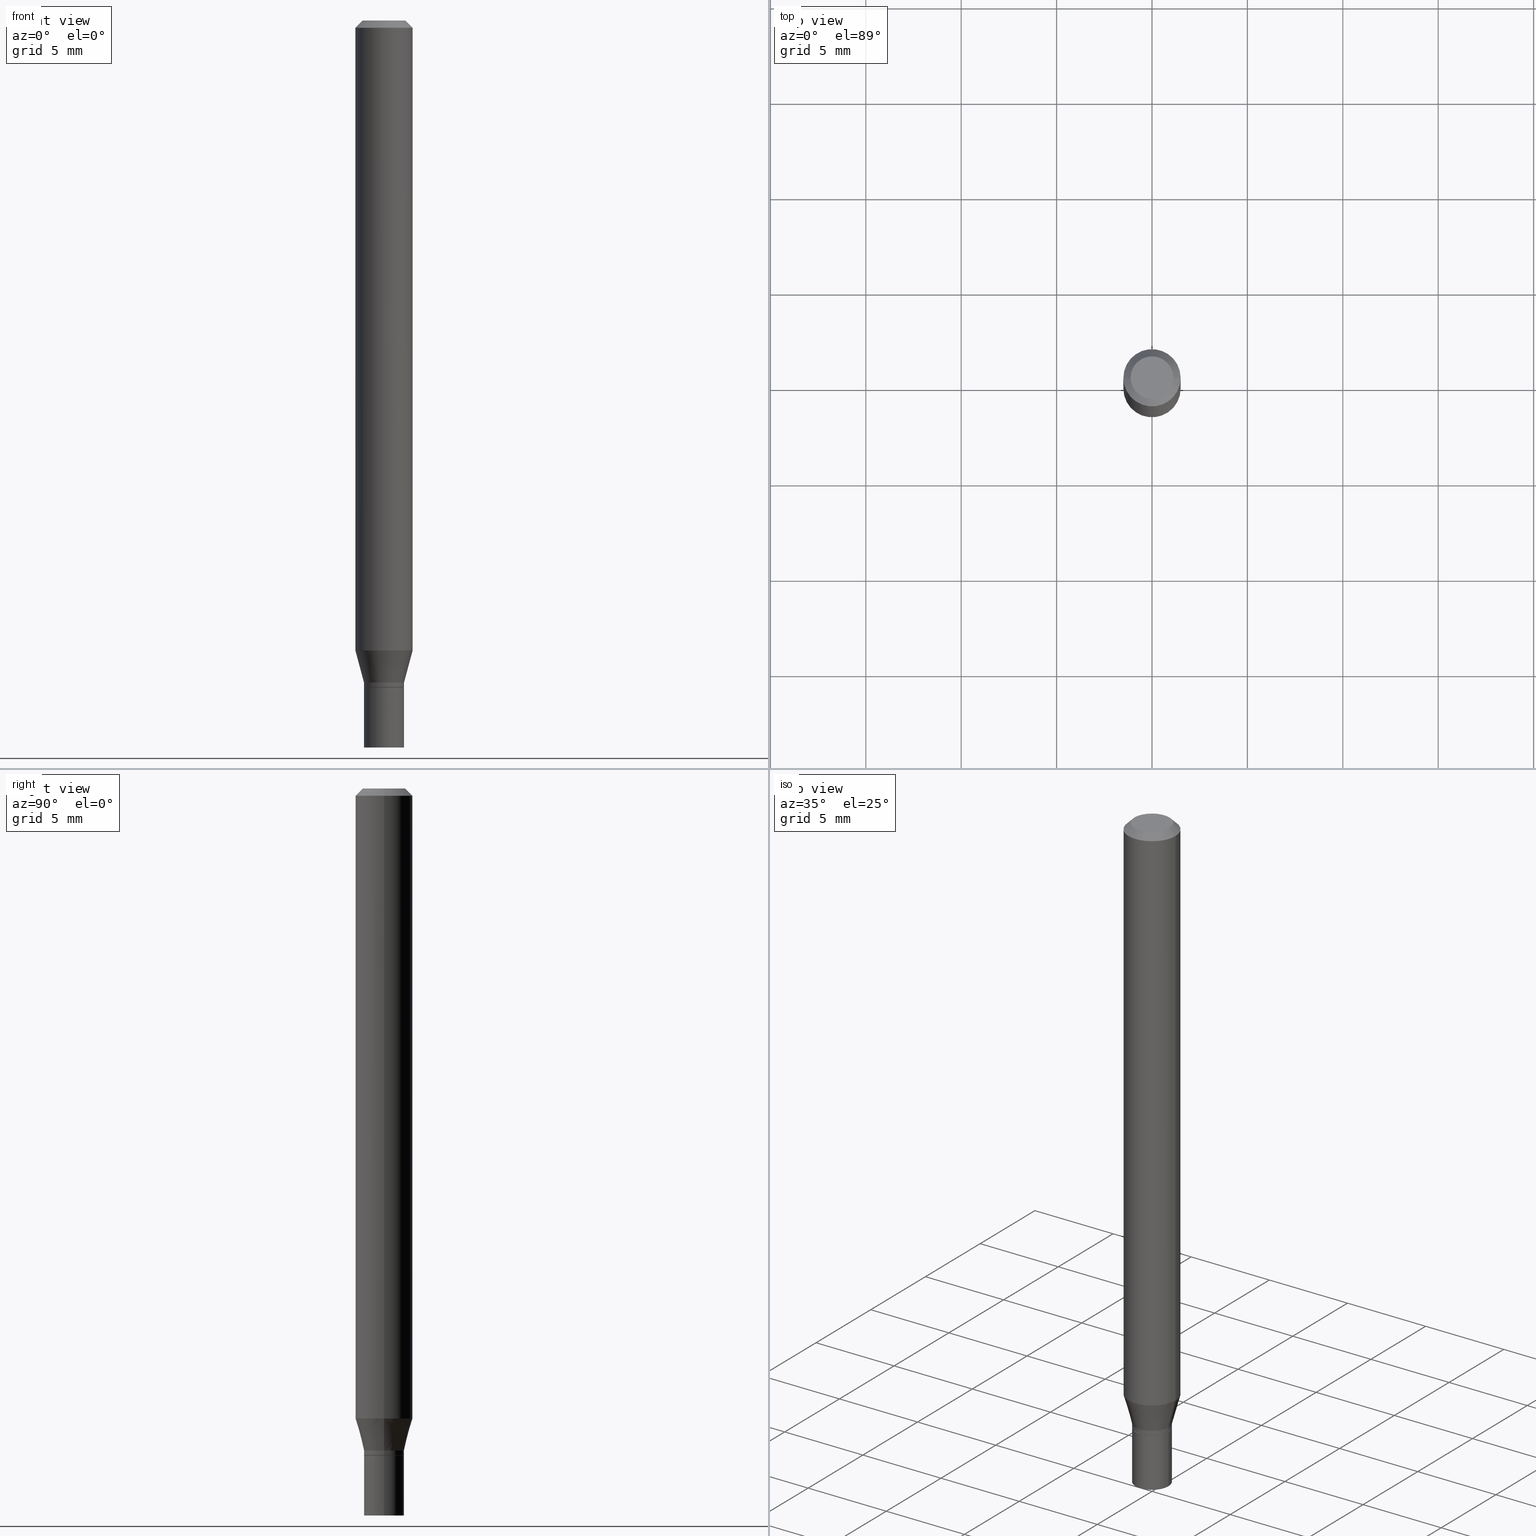
[diagram: canonical four-view strip — front | top / right | iso, engineering-drawing reading convention]
A machine part, canonical four-view strip (front | top / right | iso — engineering-drawing reading convention). The complete STEP part file that produces these views, byte-faithful:
ISO-10303-21;
HEADER;
FILE_DESCRIPTION (( 'STEP AP203' ),
    '1' );
FILE_NAME ('09278.STEP',
    '2024-03-14T18:17:02',
    ( '' ),
    ( '' ),
    'SwSTEP 2.0',
    'SolidWorks 2023',
    '' );
FILE_SCHEMA (( 'CONFIG_CONTROL_DESIGN' ));
ENDSEC;

DATA;
#1 = VERTEX_POINT ( 'NONE', #215 ) ;
#2 = APPROVAL_DATE_TIME ( #432, #296 ) ;
#3 = LINE ( 'NONE', #366, #442 ) ;
#4 = CIRCLE ( 'NONE', #409, 0.05904999999999999832 ) ;
#5 = CIRCLE ( 'NONE', #372, 0.04134999999999992154 ) ;
#6 = LINE ( 'NONE', #403, #150 ) ;
#7 =( NAMED_UNIT ( * ) SI_UNIT ( $, .STERADIAN. ) SOLID_ANGLE_UNIT ( ) );
#8 = ADVANCED_FACE ( 'NONE', ( #174 ), #356, .T. ) ;
#9 = CARTESIAN_POINT ( 'NONE',  ( -0.05904999999999999832, 4.195754854663391478E-16, -2.904631170795521892E-30 ) ) ;
#10 = DIRECTION ( 'NONE',  ( -2.445468806185136597E-29, 3.491481338843145583E-15, 1.000000000000000000 ) ) ;
#11 = CALENDAR_DATE ( 2024, 14, 3 ) ;
#12 = AXIS2_PLACEMENT_3D ( 'NONE', #128, #286, #248 ) ;
#13 = VECTOR ( 'NONE', #264, 39.37007874015748143 ) ;
#14 = VECTOR ( 'NONE', #383, 39.37007874015748854 ) ;
#15 = EDGE_CURVE ( 'NONE', #1, #287, #365, .T. ) ;
#16 = DIRECTION ( 'NONE',  ( -2.445468806185136877E-29, 3.491481338843145188E-15, 1.000000000000000000 ) ) ;
#17 =( LENGTH_UNIT ( ) NAMED_UNIT ( * ) SI_UNIT ( $, .METRE. ) );
#18 = CARTESIAN_POINT ( 'NONE',  ( 3.576687321579069994E-29, -5.368277968210015545E-15, -1.500000000000000222 ) ) ;
#19 = DIRECTION ( 'NONE',  ( -2.438088387897960049E-29, 3.491481338843145188E-15, 1.000000000000000000 ) ) ;
#20 = ADVANCED_FACE ( 'NONE', ( #294 ), #428, .T. ) ;
#21 = AXIS2_PLACEMENT_3D ( 'NONE', #437, #222, #181 ) ;
#22 = CARTESIAN_POINT ( 'NONE',  ( 0.05904999999999999832, -4.950720479063956605E-15, -1.299842700706030918 ) ) ;
#23 = ORIENTED_EDGE ( 'NONE', *, *, #460, .T. ) ;
#24 = EDGE_CURVE ( 'NONE', #250, #203, #225, .T. ) ;
#25 = DIRECTION ( 'NONE',  ( -1.000000000000000000, 6.982962677686265922E-15, -4.876176775795935793E-29 ) ) ;
#26 = ORIENTED_EDGE ( 'NONE', *, *, #15, .F. ) ;
#27 = FACE_OUTER_BOUND ( 'NONE', #318, .T. ) ;
#28 = ORIENTED_EDGE ( 'NONE', *, *, #172, .T. ) ;
#29 = CIRCLE ( 'NONE', #92, 0.04134999999999992154 ) ;
#30 = CIRCLE ( 'NONE', #12, 0.04084999999999999742 ) ;
#31 = DIRECTION ( 'NONE',  ( 1.000000000000000000, -6.982962677686266711E-15, 4.876176775795936353E-29 ) ) ;
#32 = EDGE_CURVE ( 'NONE', #282, #269, #29, .T. ) ;
#33 = CARTESIAN_POINT ( 'NONE',  ( -0.05904999999999999832, 3.599717260347268549E-16, -0.01499999999999999944 ) ) ;
#34 = VERTEX_POINT ( 'NONE', #152 ) ;
#35 = DIRECTION ( 'NONE',  ( -2.445468806185136597E-29, 3.491481338843145583E-15, 1.000000000000000000 ) ) ;
#36 = ORIENTED_EDGE ( 'NONE', *, *, #323, .F. ) ;
#37 = CARTESIAN_POINT ( 'NONE',  ( 0.000000000000000000, 0.000000000000000000, 0.000000000000000000 ) ) ;
#38 = CIRCLE ( 'NONE', #93, 0.05904999999999999832 ) ;
#39 = VERTEX_POINT ( 'NONE', #77 ) ;
#40 = CARTESIAN_POINT ( 'NONE',  ( 0.000000000000000000, 0.000000000000000000, 0.000000000000000000 ) ) ;
#41 = APPROVAL_ROLE ( '' ) ;
#42 = CARTESIAN_POINT ( 'NONE',  ( 3.364720530430130200E-29, -4.803929174114285214E-15, -1.375900000000000123 ) ) ;
#43 = SECURITY_CLASSIFICATION ( '', '', #369 ) ;
#44 = CALENDAR_DATE ( 2024, 14, 3 ) ;
#45 = CARTESIAN_POINT ( 'NONE',  ( 3.364720530430130200E-29, -4.803929174114285214E-15, -1.375900000000000123 ) ) ;
#46 = APPLICATION_PROTOCOL_DEFINITION ( 'international standard', 'config_control_design', 1994, #404 ) ;
#47 = CARTESIAN_POINT ( 'NONE',  ( 0.000000000000000000, 0.000000000000000000, 0.000000000000000000 ) ) ;
#48 = LENGTH_MEASURE_WITH_UNIT ( LENGTH_MEASURE( 0.02539999999999999897 ), #17 );
#49 = DIRECTION ( 'NONE',  ( -2.445468806185136877E-29, 3.491481338843145188E-15, 1.000000000000000000 ) ) ;
#50 = ORGANIZATION ( 'UNSPECIFIED', 'UNSPECIFIED', '' ) ;
#51 = CONICAL_SURFACE ( 'NONE', #290, 0.04084999999999999742, 0.7853981633974739252 ) ;
#52 = DIRECTION ( 'NONE',  ( -2.445468806185136597E-29, 3.491481338843145583E-15, 1.000000000000000000 ) ) ;
#53 = DIRECTION ( 'NONE',  ( -2.445468806185136597E-29, 3.491481338843145583E-15, 1.000000000000000000 ) ) ;
#54 = ADVANCED_FACE ( 'NONE', ( #295 ), #285, .T. ) ;
#55 = DIRECTION ( 'NONE',  ( -2.445468806185136597E-29, 3.491481338843145583E-15, 1.000000000000000000 ) ) ;
#56 = ADVANCED_FACE ( 'NONE', ( #258 ), #254, .T. ) ;
#57 = LINE ( 'NONE', #446, #142 ) ;
#58 = CARTESIAN_POINT ( 'NONE',  ( -0.04134999999999992154, -4.508374012208062298E-15, -1.375400000000000400 ) ) ;
#59 = ORIENTED_EDGE ( 'NONE', *, *, #359, .F. ) ;
#60 = MANIFOLD_SOLID_BREP ( 'Body-Move/Copy2[1]', #334 ) ;
#61 = CARTESIAN_POINT ( 'NONE',  ( -0.04134999999999992154, 2.938094212368008694E-16, -2.033979659820399598E-30 ) ) ;
#62 = VERTEX_POINT ( 'NONE', #261 ) ;
#63 = CARTESIAN_POINT ( 'NONE',  ( 3.668203209277705088E-31, -5.237222008264718399E-17, -0.01499999999999999944 ) ) ;
#64 = EDGE_LOOP ( 'NONE', ( #97, #106, #380, #358 ) ) ;
#65 = CARTESIAN_POINT ( 'NONE',  ( 3.364720530430130200E-29, -4.803929174114285214E-15, -1.375900000000000123 ) ) ;
#66 = ORIENTED_EDGE ( 'NONE', *, *, #280, .T. ) ;
#67 = EDGE_CURVE ( 'NONE', #282, #34, #6, .T. ) ;
#68 = ORIENTED_EDGE ( 'NONE', *, *, #341, .T. ) ;
#69 = ORIENTED_EDGE ( 'NONE', *, *, #109, .F. ) ;
#70 = AXIS2_PLACEMENT_3D ( 'NONE', #40, #141, #397 ) ;
#71 = AXIS2_PLACEMENT_3D ( 'NONE', #274, #313, #268 ) ;
#72 = APPROVAL ( #364, 'UNSPECIFIED' ) ;
#73 = DIRECTION ( 'NONE',  ( 2.445468806185136597E-29, -3.491481338843145583E-15, -1.000000000000000000 ) ) ;
#74 = APPROVAL_ROLE ( '' ) ;
#75 = ADVANCED_FACE ( 'NONE', ( #113 ), #185, .T. ) ;
#76 = ADVANCED_FACE ( 'NONE', ( #178 ), #435, .T. ) ;
#77 = CARTESIAN_POINT ( 'NONE',  ( -0.05904999999999999832, -4.118801047480243769E-15, -1.299842700706030918 ) ) ;
#78 = CALENDAR_DATE ( 2024, 14, 3 ) ;
#79 = DIRECTION ( 'NONE',  ( -1.000000000000000000, 6.982962677686266711E-15, 0.000000000000000000 ) ) ;
#80 = DATE_AND_TIME ( #11, #125 ) ;
#81 = DIRECTION ( 'NONE',  ( 1.000000000000000000, -6.982962677686273021E-15, 0.000000000000000000 ) ) ;
#82 = PERSON_AND_ORGANIZATION ( #406, #50 ) ;
#83 = CC_DESIGN_PERSON_AND_ORGANIZATION_ASSIGNMENT ( #260, #257, ( #127 ) ) ;
#84 = FACE_OUTER_BOUND ( 'NONE', #464, .T. ) ;
#85 = DATE_AND_TIME ( #444, #457 ) ;
#86 = DIRECTION ( 'NONE',  ( -2.438088387897960049E-29, 3.491481338843145188E-15, 1.000000000000000000 ) ) ;
#87 = VECTOR ( 'NONE', #169, 39.37007874015748854 ) ;
#88 = CARTESIAN_POINT ( 'NONE',  ( -0.04134999999999999787, -4.726766169952701467E-15, -1.375900000000000123 ) ) ;
#89 = EDGE_CURVE ( 'NONE', #34, #309, #3, .T. ) ;
#90 = CARTESIAN_POINT ( 'NONE',  ( 3.340265842368278094E-29, -4.769014360725852776E-15, -1.365900000000000114 ) ) ;
#91 = DIRECTION ( 'NONE',  ( -2.445468806185136597E-29, 3.491481338843145583E-15, 1.000000000000000000 ) ) ;
#92 = AXIS2_PLACEMENT_3D ( 'NONE', #144, #292, #300 ) ;
#93 = AXIS2_PLACEMENT_3D ( 'NONE', #330, #361, #81 ) ;
#94 = DIRECTION ( 'NONE',  ( 1.000000000000000000, -6.982962677686262766E-15, 0.000000000000000000 ) ) ;
#95 = ADVANCED_BREP_SHAPE_REPRESENTATION ( '09278', ( #60, #205, #291 ), #415 ) ;
#96 = CARTESIAN_POINT ( 'NONE',  ( 0.05904999999999999832, -4.574846268510561447E-16, -0.01499999999999999944 ) ) ;
#97 = ORIENTED_EDGE ( 'NONE', *, *, #460, .F. ) ;
#98 = DIRECTION ( 'NONE',  ( -2.445468806185136597E-29, 3.491481338843145583E-15, 1.000000000000000000 ) ) ;
#99 = VERTEX_POINT ( 'NONE', #325 ) ;
#100 = AXIS2_PLACEMENT_3D ( 'NONE', #378, #52, #377 ) ;
#101 = CARTESIAN_POINT ( 'NONE',  ( -0.04134999999999992154, -4.475204939489051364E-15, -1.365900000000000114 ) ) ;
#102 = EDGE_LOOP ( 'NONE', ( #256, #272, #177, #450 ) ) ;
#103 = EDGE_LOOP ( 'NONE', ( #322, #219, #316, #197 ) ) ;
#104 = ORIENTED_EDGE ( 'NONE', *, *, #194, .T. ) ;
#105 = LOCAL_TIME ( 14, 17, 2.000000000000000000, #108 ) ;
#106 = ORIENTED_EDGE ( 'NONE', *, *, #340, .T. ) ;
#107 = CIRCLE ( 'NONE', #100, 0.05904999999999999832 ) ;
#108 = COORDINATED_UNIVERSAL_TIME_OFFSET ( 5, 0, .BEHIND. ) ;
#109 = EDGE_CURVE ( 'NONE', #287, #1, #328, .T. ) ;
#110 = EDGE_CURVE ( 'NONE', #309, #39, #38, .T. ) ;
#111 = DIRECTION ( 'NONE',  ( -2.445468806185136597E-29, 3.491481338843145583E-15, 1.000000000000000000 ) ) ;
#112 = DIRECTION ( 'NONE',  ( 1.000000000000000000, -6.982962677686267499E-15, 4.876176775795936353E-29 ) ) ;
#113 = FACE_OUTER_BOUND ( 'NONE', #137, .T. ) ;
#114 = LINE ( 'NONE', #228, #217 ) ;
#115 = LINE ( 'NONE', #9, #298 ) ;
#116 = CARTESIAN_POINT ( 'NONE',  ( 0.04404999999999999888, -3.798447818264464023E-16, -2.090942999999162343E-16 ) ) ;
#117 = EDGE_LOOP ( 'NONE', ( #433, #312, #104, #321 ) ) ;
#118 = AXIS2_PLACEMENT_3D ( 'NONE', #158, #449, #414 ) ;
#119 = EDGE_CURVE ( 'NONE', #39, #279, #115, .T. ) ;
#120 = CARTESIAN_POINT ( 'NONE',  ( 0.04134999999999999787, -2.887455067223271427E-16, 2.016299096791619635E-30 ) ) ;
#121 = DESIGN_CONTEXT ( 'detailed design', #404, 'design' ) ;
#122 = DIRECTION ( 'NONE',  ( -2.445468806185136597E-29, 3.491481338843145583E-15, 1.000000000000000000 ) ) ;
#123 = CARTESIAN_POINT ( 'NONE',  ( 0.04134999999999999787, -5.092674680836612159E-15, -1.375900000000000123 ) ) ;
#124 = CC_DESIGN_PERSON_AND_ORGANIZATION_ASSIGNMENT ( #438, #229, ( #127 ) ) ;
#125 = LOCAL_TIME ( 14, 17, 2.000000000000000000, #265 ) ;
#126 = AXIS2_PLACEMENT_3D ( 'NONE', #45, #443, #329 ) ;
#127 = PRODUCT_DEFINITION_FORMATION_WITH_SPECIFIED_SOURCE ( 'ANY', '', #251, .NOT_KNOWN. ) ;
#128 = CARTESIAN_POINT ( 'NONE',  ( 3.364720530430130200E-29, -4.803929174114285214E-15, -1.375900000000000123 ) ) ;
#129 = SHAPE_DEFINITION_REPRESENTATION ( #390, #95 ) ;
#130 = DIRECTION ( 'NONE',  ( 1.000000000000000000, -6.982962677686262766E-15, 0.000000000000000000 ) ) ;
#131 = ORIENTED_EDGE ( 'NONE', *, *, #375, .T. ) ;
#132 = DIRECTION ( 'NONE',  ( -2.445468806185136597E-29, 3.491481338843145583E-15, 1.000000000000000000 ) ) ;
#133 = ORIENTED_EDGE ( 'NONE', *, *, #155, .T. ) ;
#134 = CARTESIAN_POINT ( 'NONE',  ( 0.04134999999999999787, -5.525967514987045911E-15, -1.500000000000000222 ) ) ;
#135 = AXIS2_PLACEMENT_3D ( 'NONE', #407, #111, #363 ) ;
#136 = EDGE_LOOP ( 'NONE', ( #427, #199 ) ) ;
#137 = EDGE_LOOP ( 'NONE', ( #252, #345, #385, #303 ) ) ;
#138 = ORIENTED_EDGE ( 'NONE', *, *, #375, .F. ) ;
#139 = EDGE_CURVE ( 'NONE', #349, #389, #357, .T. ) ;
#140 = VECTOR ( 'NONE', #386, 39.37007874015748143 ) ;
#141 = DIRECTION ( 'NONE',  ( -2.445468806185136597E-29, 3.491481338843145583E-15, 1.000000000000000000 ) ) ;
#142 = VECTOR ( 'NONE', #410, 39.37007874015748143 ) ;
#143 =( NAMED_UNIT ( * ) PLANE_ANGLE_UNIT ( ) SI_UNIT ( $, .RADIAN. ) );
#144 = CARTESIAN_POINT ( 'NONE',  ( 3.363497796027037398E-29, -4.802183433444863710E-15, -1.375400000000000400 ) ) ;
#145 = CARTESIAN_POINT ( 'NONE',  ( 3.668203209277704895E-29, -5.237222008264718177E-15, -1.500000000000000222 ) ) ;
#146 = PERSON_AND_ORGANIZATION_ROLE ( 'creator' ) ;
#147 = CC_DESIGN_SECURITY_CLASSIFICATION ( #43, ( #127 ) ) ;
#148 = CARTESIAN_POINT ( 'NONE',  ( 5.113335882009178277E-45, -7.300488465081862281E-31, -2.090942999999186255E-16 ) ) ;
#149 = COORDINATED_UNIVERSAL_TIME_OFFSET ( 5, 0, .BEHIND. ) ;
#150 = VECTOR ( 'NONE', #220, 39.37007874015748143 ) ;
#151 = CIRCLE ( 'NONE', #455, 0.04134999999999999787 ) ;
#152 = CARTESIAN_POINT ( 'NONE',  ( 0.04134999999999992154, -5.057759867448178932E-15, -1.365900000000000114 ) ) ;
#153 = DIRECTION ( 'NONE',  ( -2.445468806185136877E-29, 3.491481338843145188E-15, 1.000000000000000000 ) ) ;
#154 = ORIENTED_EDGE ( 'NONE', *, *, #139, .F. ) ;
#155 = EDGE_CURVE ( 'NONE', #309, #211, #114, .T. ) ;
#156 = CARTESIAN_POINT ( 'NONE',  ( 0.05904999999999999832, -4.647161662000212105E-16, -0.01499999999999999944 ) ) ;
#157 = CLOSED_SHELL ( 'NONE', ( #171, #393, #266, #8, #212, #54, #338, #20, #184, #196, #56, #465 ) ) ;
#158 = CARTESIAN_POINT ( 'NONE',  ( 3.668203209277705088E-31, -5.237222008264718399E-17, -0.01499999999999999944 ) ) ;
#159 = UNCERTAINTY_MEASURE_WITH_UNIT (LENGTH_MEASURE( 1.000000000000000082E-05 ), #367, 'distance_accuracy_value', 'NONE');
#160 = EDGE_CURVE ( 'NONE', #99, #269, #440, .T. ) ;
#161 = CARTESIAN_POINT ( 'NONE',  ( 3.075995059520799729E-16, 0.04404999999999999888, -2.583469029759998662E-16 ) ) ;
#162 = ORIENTED_EDGE ( 'NONE', *, *, #32, .T. ) ;
#163 = DIRECTION ( 'NONE',  ( 1.000000000000000000, -6.982962677686265922E-15, 4.876176775795935793E-29 ) ) ;
#164 = LOCAL_TIME ( 14, 17, 2.000000000000000000, #179 ) ;
#165 = CIRCLE ( 'NONE', #447, 0.04134999999999992154 ) ;
#166 = CARTESIAN_POINT ( 'NONE',  ( -0.04134999999999999787, 2.938094212368014117E-16, -2.033979659820403452E-30 ) ) ;
#167 = ORIENTED_EDGE ( 'NONE', *, *, #307, .F. ) ;
#168 = CC_DESIGN_PERSON_AND_ORGANIZATION_ASSIGNMENT ( #336, #146, ( #319 ) ) ;
#169 = DIRECTION ( 'NONE',  ( -0.2588190451025217387, 5.211531920934551042E-15, 0.9659258262890679791 ) ) ;
#170 = ORIENTED_EDGE ( 'NONE', *, *, #67, .F. ) ;
#171 = ADVANCED_FACE ( 'NONE', ( #84 ), #395, .T. ) ;
#172 = EDGE_CURVE ( 'NONE', #62, #34, #350, .T. ) ;
#173 = DIRECTION ( 'NONE',  ( -2.445468806185136597E-29, 3.491481338843145583E-15, 1.000000000000000000 ) ) ;
#174 = FACE_OUTER_BOUND ( 'NONE', #103, .T. ) ;
#175 = AXIS2_PLACEMENT_3D ( 'NONE', #47, #224, #112 ) ;
#176 = ORIENTED_EDGE ( 'NONE', *, *, #436, .F. ) ;
#177 = ORIENTED_EDGE ( 'NONE', *, *, #24, .F. ) ;
#178 = FACE_OUTER_BOUND ( 'NONE', #102, .T. ) ;
#179 = COORDINATED_UNIVERSAL_TIME_OFFSET ( 5, 0, .BEHIND. ) ;
#180 = VECTOR ( 'NONE', #352, 39.37007874015748854 ) ;
#181 = DIRECTION ( 'NONE',  ( 1.000000000000000000, -6.982962677686262766E-15, 0.000000000000000000 ) ) ;
#182 = AXIS2_PLACEMENT_3D ( 'NONE', #37, #289, #31 ) ;
#183 = APPROVAL_DATE_TIME ( #263, #72 ) ;
#184 = ADVANCED_FACE ( 'NONE', ( #452 ), #416, .F. ) ;
#185 = CYLINDRICAL_SURFACE ( 'NONE', #175, 0.04134999999999999787 ) ;
#186 = APPROVAL_ROLE ( '' ) ;
#187 = DIRECTION ( 'NONE',  ( 1.000000000000000000, -6.982962677686273021E-15, 0.000000000000000000 ) ) ;
#188 = DIRECTION ( 'NONE',  ( 0.000000000000000000, 0.000000000000000000, 1.000000000000000000 ) ) ;
#189 = CC_DESIGN_DATE_AND_TIME_ASSIGNMENT ( #326, #405, ( #319 ) ) ;
#190 = CC_DESIGN_APPROVAL ( #451, ( #319 ) ) ;
#191 = CARTESIAN_POINT ( 'NONE',  ( 3.668203209277705088E-31, -5.237222008264718399E-17, -0.01499999999999999944 ) ) ;
#192 = APPROVAL_DATE_TIME ( #80, #451 ) ;
#193 = CC_DESIGN_APPROVAL ( #72, ( #127 ) ) ;
#194 = EDGE_CURVE ( 'NONE', #388, #282, #57, .T. ) ;
#195 = CARTESIAN_POINT ( 'NONE',  ( 0.04134999999999992154, -5.090928940167189867E-15, -1.375400000000000400 ) ) ;
#196 = ADVANCED_FACE ( 'NONE', ( #376 ), #236, .F. ) ;
#197 = ORIENTED_EDGE ( 'NONE', *, *, #155, .F. ) ;
#198 = CARTESIAN_POINT ( 'NONE',  ( 3.178724777524041310E-29, -4.538376532946583262E-15, -1.299842700706030918 ) ) ;
#199 = ORIENTED_EDGE ( 'NONE', *, *, #109, .T. ) ;
#200 = DIRECTION ( 'NONE',  ( -2.445468806185136597E-29, 3.491481338843145583E-15, 1.000000000000000000 ) ) ;
#201 = ORIENTED_EDGE ( 'NONE', *, *, #439, .F. ) ;
#202 = DIRECTION ( 'NONE',  ( -1.000000000000000000, 6.982962677686265922E-15, -4.876176775795935793E-29 ) ) ;
#203 = VERTEX_POINT ( 'NONE', #88 ) ;
#204 = CARTESIAN_POINT ( 'NONE',  ( 3.668203209277704895E-29, -5.237222008264718177E-15, -1.500000000000000222 ) ) ;
#205 = MANIFOLD_SOLID_BREP ( 'Body-Move/Copy2[2]', #157 ) ;
#206 = CYLINDRICAL_SURFACE ( 'NONE', #418, 0.04134999999999992154 ) ;
#207 = ORIENTED_EDGE ( 'NONE', *, *, #160, .T. ) ;
#208 = VECTOR ( 'NONE', #354, 39.37007874015748143 ) ;
#209 = AXIS2_PLACEMENT_3D ( 'NONE', #456, #19, #240 ) ;
#210 = CARTESIAN_POINT ( 'NONE',  ( -0.04134999999999999787, -4.726766169952701467E-15, -1.500000000000000222 ) ) ;
#211 = VERTEX_POINT ( 'NONE', #156 ) ;
#212 = ADVANCED_FACE ( 'NONE', ( #235 ), #374, .T. ) ;
#213 = FACE_OUTER_BOUND ( 'NONE', #324, .T. ) ;
#214 = ORIENTED_EDGE ( 'NONE', *, *, #110, .F. ) ;
#215 = CARTESIAN_POINT ( 'NONE',  ( -0.04404999999999999888, 3.337856159934030687E-16, -2.090942999999208688E-16 ) ) ;
#216 = CONICAL_SURFACE ( 'NONE', #118, 0.05904999999999999832, 0.7853981633974553844 ) ;
#217 = VECTOR ( 'NONE', #16, 39.37007874015748143 ) ;
#218 = CIRCLE ( 'NONE', #232, 0.05904999999999999832 ) ;
#219 = ORIENTED_EDGE ( 'NONE', *, *, #119, .T. ) ;
#220 = DIRECTION ( 'NONE',  ( -2.445468806185136877E-29, 3.491481338843145188E-15, 1.000000000000000000 ) ) ;
#221 = COORDINATED_UNIVERSAL_TIME_OFFSET ( 5, 0, .BEHIND. ) ;
#222 = DIRECTION ( 'NONE',  ( -2.445468806185136597E-29, 3.491481338843145583E-15, 1.000000000000000000 ) ) ;
#223 = APPLICATION_PROTOCOL_DEFINITION ( 'international standard', 'config_control_design', 1994, #382 ) ;
#224 = DIRECTION ( 'NONE',  ( -2.445468806185136597E-29, 3.491481338843145583E-15, 1.000000000000000000 ) ) ;
#225 = CIRCLE ( 'NONE', #402, 0.04134999999999999787 ) ;
#226 = PERSON_AND_ORGANIZATION_ROLE ( 'design_owner' ) ;
#227 = EDGE_CURVE ( 'NONE', #34, #62, #5, .T. ) ;
#228 = CARTESIAN_POINT ( 'NONE',  ( 0.05904999999999999832, -4.123439461173740327E-16, 2.879382386107500220E-30 ) ) ;
#229 = PERSON_AND_ORGANIZATION_ROLE ( 'creator' ) ;
#230 = DIRECTION ( 'NONE',  ( 1.000000000000000000, -6.982962677686267499E-15, 4.876176775795936353E-29 ) ) ;
#231 = DATE_TIME_ROLE ( 'classification_date' ) ;
#232 = AXIS2_PLACEMENT_3D ( 'NONE', #198, #55, #453 ) ;
#233 = LINE ( 'NONE', #120, #304 ) ;
#234 = AXIS2_PLACEMENT_3D ( 'NONE', #65, #173, #320 ) ;
#235 = FACE_OUTER_BOUND ( 'NONE', #422, .T. ) ;
#236 = PLANE ( 'NONE',  #209 ) ;
#237 = CC_DESIGN_PERSON_AND_ORGANIZATION_ASSIGNMENT ( #299, #401, ( #43 ) ) ;
#238 = PLANE ( 'NONE',  #314 ) ;
#239 = AXIS2_PLACEMENT_3D ( 'NONE', #148, #370, #400 ) ;
#240 = DIRECTION ( 'NONE',  ( 1.000000000000000000, -6.982962677686265922E-15, 4.876176775795935793E-29 ) ) ;
#241 = EDGE_LOOP ( 'NONE', ( #59, #28, #249, #167 ) ) ;
#242 = CARTESIAN_POINT ( 'NONE',  ( 0.04084999999999999742, -5.089183199497769152E-15, -1.375900000000000123 ) ) ;
#243 = ORIENTED_EDGE ( 'NONE', *, *, #227, .F. ) ;
#244 = ADVANCED_FACE ( 'NONE', ( #342 ), #308, .F. ) ;
#245 = LINE ( 'NONE', #33, #14 ) ;
#246 = ORIENTED_EDGE ( 'NONE', *, *, #307, .T. ) ;
#247 = LOCAL_TIME ( 14, 17, 2.000000000000000000, #149 ) ;
#248 = DIRECTION ( 'NONE',  ( 1.000000000000000000, -6.982962677686261189E-15, 0.000000000000000000 ) ) ;
#249 = ORIENTED_EDGE ( 'NONE', *, *, #89, .T. ) ;
#250 = VERTEX_POINT ( 'NONE', #123 ) ;
#251 = PRODUCT ( '09278', '09278', '', ( #301 ) ) ;
#252 = ORIENTED_EDGE ( 'NONE', *, *, #387, .F. ) ;
#253 = APPROVAL_PERSON_ORGANIZATION ( #371, #296, #41 ) ;
#254 = CONICAL_SURFACE ( 'NONE', #126, 0.04084999999999999742, 0.7853981633974739252 ) ;
#255 = AXIS2_PLACEMENT_3D ( 'NONE', #379, #273, #25 ) ;
#256 = ORIENTED_EDGE ( 'NONE', *, *, #323, .T. ) ;
#257 = PERSON_AND_ORGANIZATION_ROLE ( 'design_supplier' ) ;
#258 = FACE_OUTER_BOUND ( 'NONE', #117, .T. ) ;
#259 = DIRECTION ( 'NONE',  ( 0.2588190451025217387, 1.565188264969619207E-15, 0.9659258262890679791 ) ) ;
#260 = PERSON_AND_ORGANIZATION ( #406, #50 ) ;
#261 = CARTESIAN_POINT ( 'NONE',  ( -0.04134999999999992154, -4.297002993484647567E-15, -1.365900000000000114 ) ) ;
#262 = AXIS2_PLACEMENT_3D ( 'NONE', #445, #332, #230 ) ;
#263 = DATE_AND_TIME ( #44, #247 ) ;
#264 = DIRECTION ( 'NONE',  ( -0.7071067811865656694, 7.493145998870420424E-15, 0.7071067811865294761 ) ) ;
#265 = COORDINATED_UNIVERSAL_TIME_OFFSET ( 5, 0, .BEHIND. ) ;
#266 = ADVANCED_FACE ( 'NONE', ( #412 ), #216, .T. ) ;
#267 = CARTESIAN_POINT ( 'NONE',  ( 0.000000000000000000, 0.000000000000000000, 0.000000000000000000 ) ) ;
#268 = DIRECTION ( 'NONE',  ( 1.000000000000000000, -6.982962677686262766E-15, 0.000000000000000000 ) ) ;
#269 = VERTEX_POINT ( 'NONE', #58 ) ;
#270 = EDGE_CURVE ( 'NONE', #389, #250, #233, .T. ) ;
#271 = DIRECTION ( 'NONE',  ( 1.000000000000000000, -6.982962677686266711E-15, 4.876176775795936353E-29 ) ) ;
#272 = ORIENTED_EDGE ( 'NONE', *, *, #387, .T. ) ;
#273 = DIRECTION ( 'NONE',  ( 2.438088387897960049E-29, -3.491481338843145188E-15, -1.000000000000000000 ) ) ;
#274 = CARTESIAN_POINT ( 'NONE',  ( 3.340265842368278094E-29, -4.769014360725852776E-15, -1.365900000000000114 ) ) ;
#275 = ORIENTED_EDGE ( 'NONE', *, *, #360, .F. ) ;
#276 = CC_DESIGN_DATE_AND_TIME_ASSIGNMENT ( #85, #231, ( #43 ) ) ;
#277 = AXIS2_PLACEMENT_3D ( 'NONE', #161, #302, #202 ) ;
#278 = DIRECTION ( 'NONE',  ( 1.000000000000000000, -6.982962677686261189E-15, 0.000000000000000000 ) ) ;
#279 = VERTEX_POINT ( 'NONE', #311 ) ;
#280 = EDGE_CURVE ( 'NONE', #211, #279, #107, .T. ) ;
#281 = DIRECTION ( 'NONE',  ( -2.445468806185136597E-29, 3.491481338843145583E-15, 1.000000000000000000 ) ) ;
#282 = VERTEX_POINT ( 'NONE', #195 ) ;
#283 = DIRECTION ( 'NONE',  ( 1.000000000000000000, -6.982962677686266711E-15, 0.000000000000000000 ) ) ;
#284 = EDGE_LOOP ( 'NONE', ( #306, #68 ) ) ;
#285 = CONICAL_SURFACE ( 'NONE', #21, 0.04134999999999992154, 0.2617993877991504625 ) ;
#286 = DIRECTION ( 'NONE',  ( -2.445468806185136597E-29, 3.491481338843145583E-15, 1.000000000000000000 ) ) ;
#287 = VERTEX_POINT ( 'NONE', #116 ) ;
#288 = EDGE_LOOP ( 'NONE', ( #391, #246, #133, #201 ) ) ;
#289 = DIRECTION ( 'NONE',  ( -2.445468806185136597E-29, 3.491481338843145583E-15, 1.000000000000000000 ) ) ;
#290 = AXIS2_PLACEMENT_3D ( 'NONE', #381, #98, #278 ) ;
#291 = AXIS2_PLACEMENT_3D ( 'NONE', #293, #188, #333 ) ;
#292 = DIRECTION ( 'NONE',  ( -2.445468806185136597E-29, 3.491481338843145583E-15, 1.000000000000000000 ) ) ;
#293 = CARTESIAN_POINT ( 'NONE',  ( 0.000000000000000000, 0.000000000000000000, 0.000000000000000000 ) ) ;
#294 = FACE_OUTER_BOUND ( 'NONE', #459, .T. ) ;
#295 = FACE_OUTER_BOUND ( 'NONE', #241, .T. ) ;
#296 = APPROVAL ( #362, 'UNSPECIFIED' ) ;
#297 = DIRECTION ( 'NONE',  ( -2.445468806185136597E-29, 3.491481338843145583E-15, 1.000000000000000000 ) ) ;
#298 = VECTOR ( 'NONE', #49, 39.37007874015748143 ) ;
#299 = PERSON_AND_ORGANIZATION ( #406, #50 ) ;
#300 = DIRECTION ( 'NONE',  ( 1.000000000000000000, -6.982962677686262766E-15, 0.000000000000000000 ) ) ;
#301 = MECHANICAL_CONTEXT ( 'NONE', #382, 'mechanical' ) ;
#302 = DIRECTION ( 'NONE',  ( 2.438088387897960049E-29, -3.491481338843145188E-15, -1.000000000000000000 ) ) ;
#303 = ORIENTED_EDGE ( 'NONE', *, *, #341, .F. ) ;
#304 = VECTOR ( 'NONE', #153, 39.37007874015748143 ) ;
#305 = CYLINDRICAL_SURFACE ( 'NONE', #384, 0.05904999999999999832 ) ;
#306 = ORIENTED_EDGE ( 'NONE', *, *, #24, .T. ) ;
#307 = EDGE_CURVE ( 'NONE', #39, #309, #218, .T. ) ;
#308 = PLANE ( 'NONE',  #255 ) ;
#309 = VERTEX_POINT ( 'NONE', #22 ) ;
#310 = DIMENSIONAL_EXPONENTS ( 1.000000000000000000, 0.000000000000000000, 0.000000000000000000, 0.000000000000000000, 0.000000000000000000, 0.000000000000000000, 0.000000000000000000 ) ;
#311 = CARTESIAN_POINT ( 'NONE',  ( -0.05904999999999999832, -1.875798891048276269E-15, -0.01499999999999999944 ) ) ;
#312 = ORIENTED_EDGE ( 'NONE', *, *, #360, .T. ) ;
#313 = DIRECTION ( 'NONE',  ( -2.445468806185136597E-29, 3.491481338843145583E-15, 1.000000000000000000 ) ) ;
#314 = AXIS2_PLACEMENT_3D ( 'NONE', #18, #86, #163 ) ;
#315 = CARTESIAN_POINT ( 'NONE',  ( 0.000000000000000000, 0.000000000000000000, 0.000000000000000000 ) ) ;
#316 = ORIENTED_EDGE ( 'NONE', *, *, #280, .F. ) ;
#317 = LINE ( 'NONE', #101, #87 ) ;
#318 = EDGE_LOOP ( 'NONE', ( #36, #154 ) ) ;
#319 = PRODUCT_DEFINITION ( 'UNKNOWN', '', #127, #121 ) ;
#320 = DIRECTION ( 'NONE',  ( 1.000000000000000000, -6.982962677686261189E-15, 0.000000000000000000 ) ) ;
#321 = ORIENTED_EDGE ( 'NONE', *, *, #340, .F. ) ;
#322 = ORIENTED_EDGE ( 'NONE', *, *, #110, .T. ) ;
#323 = EDGE_CURVE ( 'NONE', #389, #349, #151, .T. ) ;
#324 = EDGE_LOOP ( 'NONE', ( #353, #207, #343, #466 ) ) ;
#325 = CARTESIAN_POINT ( 'NONE',  ( -0.04084999999999999742, -4.511023239382173499E-15, -1.375900000000000123 ) ) ;
#326 = DATE_AND_TIME ( #78, #105 ) ;
#327 = APPROVAL_PERSON_ORGANIZATION ( #82, #72, #186 ) ;
#328 = CIRCLE ( 'NONE', #239, 0.04404999999999999888 ) ;
#329 = DIRECTION ( 'NONE',  ( 1.000000000000000000, -6.982962677686261189E-15, 0.000000000000000000 ) ) ;
#330 = CARTESIAN_POINT ( 'NONE',  ( 3.178724777524041310E-29, -4.538376532946583262E-15, -1.299842700706030918 ) ) ;
#331 = ADVANCED_FACE ( 'NONE', ( #27 ), #238, .F. ) ;
#332 = DIRECTION ( 'NONE',  ( -2.445468806185136597E-29, 3.491481338843145583E-15, 1.000000000000000000 ) ) ;
#333 = DIRECTION ( 'NONE',  ( 1.000000000000000000, 0.000000000000000000, 0.000000000000000000 ) ) ;
#334 = CLOSED_SHELL ( 'NONE', ( #76, #331, #75, #244 ) ) ;
#335 = DIRECTION ( 'NONE',  ( 1.000000000000000000, -6.982962677686273021E-15, 0.000000000000000000 ) ) ;
#336 = PERSON_AND_ORGANIZATION ( #406, #50 ) ;
#337 = DIRECTION ( 'NONE',  ( -2.445468806185136597E-29, 3.491481338843145583E-15, 1.000000000000000000 ) ) ;
#338 = ADVANCED_FACE ( 'NONE', ( #373 ), #305, .T. ) ;
#339 = DIRECTION ( 'NONE',  ( 1.000000000000000000, -6.982962677686262766E-15, 0.000000000000000000 ) ) ;
#340 = EDGE_CURVE ( 'NONE', #269, #282, #165, .T. ) ;
#341 = EDGE_CURVE ( 'NONE', #203, #250, #434, .T. ) ;
#342 = FACE_OUTER_BOUND ( 'NONE', #284, .T. ) ;
#343 = ORIENTED_EDGE ( 'NONE', *, *, #32, .F. ) ;
#344 = CARTESIAN_POINT ( 'NONE',  ( 3.340265842368278094E-29, -4.769014360725852776E-15, -1.365900000000000114 ) ) ;
#345 = ORIENTED_EDGE ( 'NONE', *, *, #139, .T. ) ;
#346 = DIRECTION ( 'NONE',  ( 1.000000000000000000, -6.982962677686273021E-15, 0.000000000000000000 ) ) ;
#347 = FACE_OUTER_BOUND ( 'NONE', #64, .T. ) ;
#348 = AXIS2_PLACEMENT_3D ( 'NONE', #458, #281, #421 ) ;
#349 = VERTEX_POINT ( 'NONE', #210 ) ;
#350 = CIRCLE ( 'NONE', #392, 0.04134999999999992154 ) ;
#351 = CC_DESIGN_APPROVAL ( #296, ( #43 ) ) ;
#352 = DIRECTION ( 'NONE',  ( 0.7071067811865524577, -7.319954787623271823E-15, -0.7071067811865424657 ) ) ;
#353 = ORIENTED_EDGE ( 'NONE', *, *, #436, .T. ) ;
#354 = DIRECTION ( 'NONE',  ( -2.445468806185136877E-29, 3.491481338843145188E-15, 1.000000000000000000 ) ) ;
#355 = ORIENTED_EDGE ( 'NONE', *, *, #423, .F. ) ;
#356 = CYLINDRICAL_SURFACE ( 'NONE', #182, 0.05904999999999999832 ) ;
#357 = CIRCLE ( 'NONE', #417, 0.04134999999999999787 ) ;
#358 = ORIENTED_EDGE ( 'NONE', *, *, #172, .F. ) ;
#359 = EDGE_CURVE ( 'NONE', #62, #39, #317, .T. ) ;
#360 = EDGE_CURVE ( 'NONE', #99, #388, #30, .T. ) ;
#361 = DIRECTION ( 'NONE',  ( -2.445468806185136597E-29, 3.491481338843145583E-15, 1.000000000000000000 ) ) ;
#362 = APPROVAL_STATUS ( 'not_yet_approved' ) ;
#363 = DIRECTION ( 'NONE',  ( 1.000000000000000000, -6.982962677686265922E-15, 4.888540261209747396E-29 ) ) ;
#364 = APPROVAL_STATUS ( 'not_yet_approved' ) ;
#365 = CIRCLE ( 'NONE', #135, 0.04404999999999999888 ) ;
#366 = CARTESIAN_POINT ( 'NONE',  ( 0.04134999999999992154, -5.057759867448178932E-15, -1.365900000000000114 ) ) ;
#367 =( CONVERSION_BASED_UNIT ( 'INCH', #48 ) LENGTH_UNIT ( ) NAMED_UNIT ( #310 ) );
#368 = CARTESIAN_POINT ( 'NONE',  ( -0.04084999999999999742, -4.513672466556283912E-15, -1.375900000000000123 ) ) ;
#369 = SECURITY_CLASSIFICATION_LEVEL ( 'unclassified' ) ;
#370 = DIRECTION ( 'NONE',  ( -2.445468806185136597E-29, 3.491481338843145583E-15, 1.000000000000000000 ) ) ;
#371 = PERSON_AND_ORGANIZATION ( #406, #50 ) ;
#372 = AXIS2_PLACEMENT_3D ( 'NONE', #344, #53, #94 ) ;
#373 = FACE_OUTER_BOUND ( 'NONE', #288, .T. ) ;
#374 = CONICAL_SURFACE ( 'NONE', #71, 0.04134999999999992154, 0.2617993877991504625 ) ;
#375 = EDGE_CURVE ( 'NONE', #287, #211, #461, .T. ) ;
#376 = FACE_OUTER_BOUND ( 'NONE', #429, .T. ) ;
#377 = DIRECTION ( 'NONE',  ( 1.000000000000000000, -6.982962677686266711E-15, 0.000000000000000000 ) ) ;
#378 = CARTESIAN_POINT ( 'NONE',  ( 3.668203209277705088E-31, -5.237222008264718399E-17, -0.01499999999999999944 ) ) ;
#379 = CARTESIAN_POINT ( 'NONE',  ( 2.887455067223607679E-16, 0.04134999999999519615, -1.375900000000000567 ) ) ;
#380 = ORIENTED_EDGE ( 'NONE', *, *, #67, .T. ) ;
#381 = CARTESIAN_POINT ( 'NONE',  ( 3.364720530430130200E-29, -4.803929174114285214E-15, -1.375900000000000123 ) ) ;
#382 = APPLICATION_CONTEXT ( 'configuration controlled 3d designs of mechanical parts and assemblies' ) ;
#383 = DIRECTION ( 'NONE',  ( -0.7071067811865524577, 2.468850131082309125E-15, -0.7071067811865424657 ) ) ;
#384 = AXIS2_PLACEMENT_3D ( 'NONE', #267, #200, #271 ) ;
#385 = ORIENTED_EDGE ( 'NONE', *, *, #270, .T. ) ;
#386 = DIRECTION ( 'NONE',  ( -2.445468806185136877E-29, 3.491481338843145188E-15, 1.000000000000000000 ) ) ;
#387 = EDGE_CURVE ( 'NONE', #349, #203, #463, .T. ) ;
#388 = VERTEX_POINT ( 'NONE', #242 ) ;
#389 = VERTEX_POINT ( 'NONE', #134 ) ;
#390 = PRODUCT_DEFINITION_SHAPE ( 'NONE', 'NONE',  #319 ) ;
#391 = ORIENTED_EDGE ( 'NONE', *, *, #119, .F. ) ;
#392 = AXIS2_PLACEMENT_3D ( 'NONE', #90, #122, #339 ) ;
#393 = ADVANCED_FACE ( 'NONE', ( #213 ), #51, .T. ) ;
#394 = APPROVAL_PERSON_ORGANIZATION ( #398, #451, #74 ) ;
#395 = CYLINDRICAL_SURFACE ( 'NONE', #70, 0.04134999999999992154 ) ;
#396 = APPROVAL_STATUS ( 'not_yet_approved' ) ;
#397 = DIRECTION ( 'NONE',  ( 1.000000000000000000, -6.982962677686267499E-15, 4.876176775795936353E-29 ) ) ;
#398 = PERSON_AND_ORGANIZATION ( #406, #50 ) ;
#399 = CC_DESIGN_PERSON_AND_ORGANIZATION_ASSIGNMENT ( #441, #226, ( #251 ) ) ;
#400 = DIRECTION ( 'NONE',  ( 1.000000000000000000, -6.982962677686265922E-15, 4.888540261209747396E-29 ) ) ;
#401 = PERSON_AND_ORGANIZATION_ROLE ( 'classification_officer' ) ;
#402 = AXIS2_PLACEMENT_3D ( 'NONE', #42, #10, #187 ) ;
#403 = CARTESIAN_POINT ( 'NONE',  ( 0.04134999999999992154, -2.887455067223266003E-16, 2.016299096791615782E-30 ) ) ;
#404 = APPLICATION_CONTEXT ( 'configuration controlled 3d designs of mechanical parts and assemblies' ) ;
#405 = DATE_TIME_ROLE ( 'creation_date' ) ;
#406 = PERSON ( 'UNSPECIFIED', 'UNSPECIFIED', 'UNSPECIFIED', ('UNSPECIFIED'), ('UNSPECIFIED'), ('UNSPECIFIED') ) ;
#407 = CARTESIAN_POINT ( 'NONE',  ( 5.113335882009178277E-45, -7.300488465081862281E-31, -2.090942999999186255E-16 ) ) ;
#408 = CARTESIAN_POINT ( 'NONE',  ( 3.363497796027037398E-29, -4.802183433444863710E-15, -1.375400000000000400 ) ) ;
#409 = AXIS2_PLACEMENT_3D ( 'NONE', #63, #132, #283 ) ;
#410 = DIRECTION ( 'NONE',  ( 0.7071067811865656694, -2.468850131082446387E-15, 0.7071067811865294761 ) ) ;
#411 = ORIENTED_EDGE ( 'NONE', *, *, #89, .F. ) ;
#412 = FACE_OUTER_BOUND ( 'NONE', #454, .T. ) ;
#413 = ORIENTED_EDGE ( 'NONE', *, *, #439, .T. ) ;
#414 = DIRECTION ( 'NONE',  ( -1.000000000000000000, 6.982962677686266711E-15, 0.000000000000000000 ) ) ;
#415 =( GEOMETRIC_REPRESENTATION_CONTEXT ( 3 ) GLOBAL_UNCERTAINTY_ASSIGNED_CONTEXT ( ( #159 ) ) GLOBAL_UNIT_ASSIGNED_CONTEXT ( ( #367, #143, #7 ) ) REPRESENTATION_CONTEXT ( 'NONE', 'WORKASPACE' ) );
#416 = PLANE ( 'NONE',  #277 ) ;
#417 = AXIS2_PLACEMENT_3D ( 'NONE', #145, #297, #335 ) ;
#418 = AXIS2_PLACEMENT_3D ( 'NONE', #315, #35, #419 ) ;
#419 = DIRECTION ( 'NONE',  ( 1.000000000000000000, -6.982962677686267499E-15, 4.876176775795936353E-29 ) ) ;
#420 = ORIENTED_EDGE ( 'NONE', *, *, #423, .T. ) ;
#421 = DIRECTION ( 'NONE',  ( 1.000000000000000000, -6.982962677686273021E-15, 0.000000000000000000 ) ) ;
#422 = EDGE_LOOP ( 'NONE', ( #430, #462, #214, #411 ) ) ;
#423 = EDGE_CURVE ( 'NONE', #1, #279, #245, .T. ) ;
#424 = LINE ( 'NONE', #61, #208 ) ;
#425 = CIRCLE ( 'NONE', #234, 0.04084999999999999742 ) ;
#426 = CALENDAR_DATE ( 2024, 14, 3 ) ;
#427 = ORIENTED_EDGE ( 'NONE', *, *, #15, .T. ) ;
#428 = CONICAL_SURFACE ( 'NONE', #448, 0.05904999999999999832, 0.7853981633974553844 ) ;
#429 = EDGE_LOOP ( 'NONE', ( #176, #275 ) ) ;
#430 = ORIENTED_EDGE ( 'NONE', *, *, #227, .T. ) ;
#431 = PRODUCT_RELATED_PRODUCT_CATEGORY ( 'detail', '', ( #251 ) ) ;
#432 = DATE_AND_TIME ( #426, #164 ) ;
#433 = ORIENTED_EDGE ( 'NONE', *, *, #160, .F. ) ;
#434 = CIRCLE ( 'NONE', #348, 0.04134999999999999787 ) ;
#435 = CYLINDRICAL_SURFACE ( 'NONE', #262, 0.04134999999999999787 ) ;
#436 = EDGE_CURVE ( 'NONE', #388, #99, #425, .T. ) ;
#437 = CARTESIAN_POINT ( 'NONE',  ( 3.340265842368278094E-29, -4.769014360725852776E-15, -1.365900000000000114 ) ) ;
#438 = PERSON_AND_ORGANIZATION ( #406, #50 ) ;
#439 = EDGE_CURVE ( 'NONE', #279, #211, #4, .T. ) ;
#440 = LINE ( 'NONE', #368, #13 ) ;
#441 = PERSON_AND_ORGANIZATION ( #406, #50 ) ;
#442 = VECTOR ( 'NONE', #259, 39.37007874015748854 ) ;
#443 = DIRECTION ( 'NONE',  ( -2.445468806185136597E-29, 3.491481338843145583E-15, 1.000000000000000000 ) ) ;
#444 = CALENDAR_DATE ( 2024, 14, 3 ) ;
#445 = CARTESIAN_POINT ( 'NONE',  ( 0.000000000000000000, 0.000000000000000000, 0.000000000000000000 ) ) ;
#446 = CARTESIAN_POINT ( 'NONE',  ( 0.04084999999999999742, -5.089183199497769152E-15, -1.375900000000000123 ) ) ;
#447 = AXIS2_PLACEMENT_3D ( 'NONE', #408, #337, #130 ) ;
#448 = AXIS2_PLACEMENT_3D ( 'NONE', #191, #73, #79 ) ;
#449 = DIRECTION ( 'NONE',  ( 2.445468806185136597E-29, -3.491481338843145583E-15, -1.000000000000000000 ) ) ;
#450 = ORIENTED_EDGE ( 'NONE', *, *, #270, .F. ) ;
#451 = APPROVAL ( #396, 'UNSPECIFIED' ) ;
#452 = FACE_OUTER_BOUND ( 'NONE', #136, .T. ) ;
#453 = DIRECTION ( 'NONE',  ( 1.000000000000000000, -6.982962677686273021E-15, 0.000000000000000000 ) ) ;
#454 = EDGE_LOOP ( 'NONE', ( #69, #131, #66, #355 ) ) ;
#455 = AXIS2_PLACEMENT_3D ( 'NONE', #204, #91, #346 ) ;
#456 = CARTESIAN_POINT ( 'NONE',  ( 3.364720530430130200E-29, -4.803929174114285214E-15, -1.375900000000000123 ) ) ;
#457 = LOCAL_TIME ( 14, 17, 2.000000000000000000, #221 ) ;
#458 = CARTESIAN_POINT ( 'NONE',  ( 3.364720530430130200E-29, -4.803929174114285214E-15, -1.375900000000000123 ) ) ;
#459 = EDGE_LOOP ( 'NONE', ( #138, #26, #420, #413 ) ) ;
#460 = EDGE_CURVE ( 'NONE', #269, #62, #424, .T. ) ;
#461 = LINE ( 'NONE', #96, #180 ) ;
#462 = ORIENTED_EDGE ( 'NONE', *, *, #359, .T. ) ;
#463 = LINE ( 'NONE', #166, #140 ) ;
#464 = EDGE_LOOP ( 'NONE', ( #162, #23, #243, #170 ) ) ;
#465 = ADVANCED_FACE ( 'NONE', ( #347 ), #206, .T. ) ;
#466 = ORIENTED_EDGE ( 'NONE', *, *, #194, .F. ) ;
ENDSEC;
END-ISO-10303-21;
